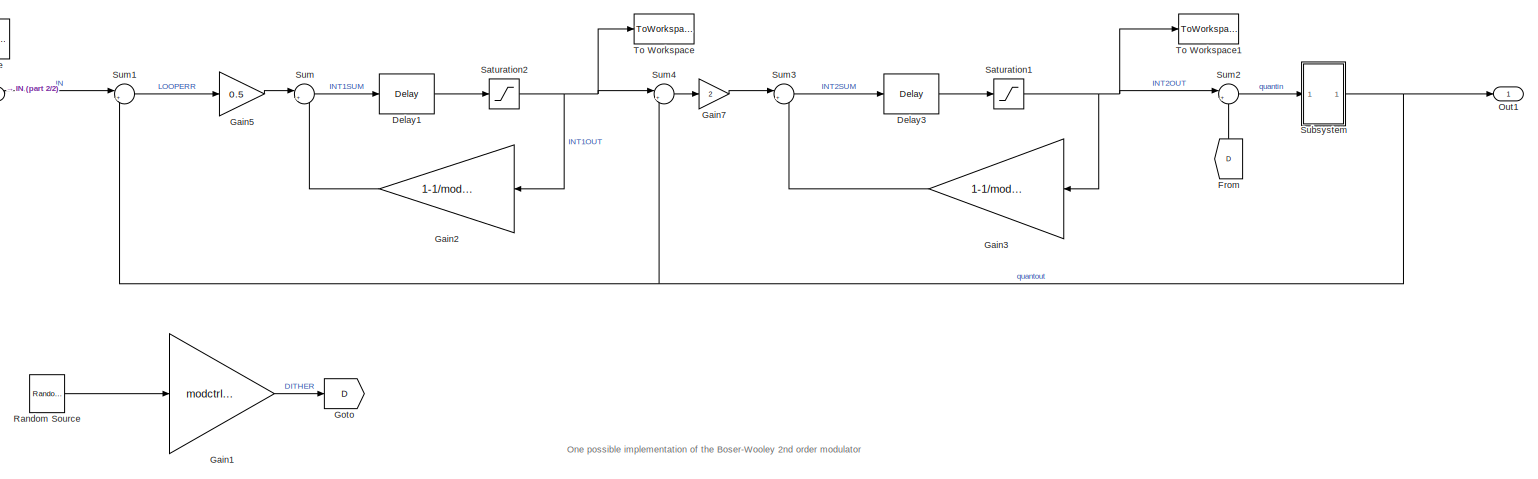
[diagram: root canvas - part 1/2, most of the canvas]
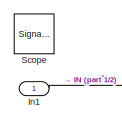
[diagram: root canvas - part 2/2, top left region]
MODEL slx_83c6b1cc9601
KIND model
BLOCK [Reference] Delay1  REF=dspsigops/Delay
  InputProcessing = Inherited (this choice will be removed - see release notes)
  Ports = [1, 1]
  SourceBlock = dspsigops/Delay
  SourceType = Delay
  UserDataPersistent = on
  delay = 1
  dif_ic_for_ch = off
  dif_ic_for_dly = off
  dly_unit = Samples
  ic = 0.05
  ic_detail = off
  reset_popup = None
BLOCK [Reference] Delay3  REF=dspsigops/Delay
  InputProcessing = Inherited (this choice will be removed - see release notes)
  Ports = [1, 1]
  SourceBlock = dspsigops/Delay
  SourceType = Delay
  UserDataPersistent = on
  delay = 1
  dif_ic_for_ch = off
  dif_ic_for_dly = off
  dly_unit = Samples
  ic = 0.05
  ic_detail = off
  reset_popup = None
BLOCK [From] From
  GotoTag = D
BLOCK [Gain] Gain1
  AttributesFormatString = Dither level adjust
  Gain = modctrl.dgain1
  OutDataTypeStr = Inherit: Inherit via internal rule
  ParamDataTypeStr = Inherit: Inherit via internal rule
  SaturateOnIntegerOverflow = off
BLOCK [Gain] Gain2
  AttributesFormatString = Integrator leakage
  Gain = 1-1/modctrl.igain1
  OutDataTypeStr = Inherit: Inherit via internal rule
  ParamDataTypeStr = Inherit: Inherit via internal rule
  SaturateOnIntegerOverflow = off
BLOCK [Gain] Gain3
  AttributesFormatString = Integrator leakage
  Gain = 1-1/modctrl.igain2
  OutDataTypeStr = Inherit: Inherit via internal rule
  ParamDataTypeStr = Inherit: Inherit via internal rule
  SaturateOnIntegerOverflow = off
BLOCK [Gain] Gain5
  Gain = 0.5
  OutDataTypeStr = Inherit: Inherit via internal rule
  ParamDataTypeStr = Inherit: Inherit via internal rule
  SaturateOnIntegerOverflow = off
BLOCK [Gain] Gain7
  Gain = 2
  OutDataTypeStr = Inherit: Inherit via internal rule
  ParamDataTypeStr = Inherit: Inherit via internal rule
  SaturateOnIntegerOverflow = off
BLOCK [Goto] Goto
  GotoTag = D
BLOCK [Inport] In1
  IconDisplay = Port number
BLOCK [Outport] Out1
  IconDisplay = Port number
BLOCK [Reference] Random Source  REF=dspsrcs4/Random
Source
  AttributesFormatString = Dither source
  CltLength = 12
  DataType = Double
  IsInherit = off
  MaxVal = 1
  MeanVal = 0
  MinVal = -1
  NormMethod = Ziggurat
  OutComplex = Real
  Ports = [0, 1]
  RepMode = Not repeatable
  SampFrame = 1
  SampMode = Discrete
  SampTime = 1/Fs
  SourceBlock = dspsrcs4/Random\nSource
  SourceType = Random Source
  SrcType = Uniform
  UserDataPersistent = on
  VarVal = 1
  rawSeed = 1
BLOCK [Saturate] Saturation1
  InputPortMap = u0
  LowerLimit = -(modctrl.isat2)
  Ports = [1, 1]
  UpperLimit = modctrl.isat2
BLOCK [Saturate] Saturation2
  InputPortMap = u0
  LowerLimit = -(modctrl.isat1)
  Ports = [1, 1]
  UpperLimit = modctrl.isat1
BLOCK [SignalViewerScope] Scope
  IOType = viewer
  MaxDataPoints = 7500
  NumInputPorts = 3
  Ports = []
  RefreshTime = 0.035000
  ShowDataMarkers = off
  ShowLegends = off
  YMax = 0.7~2.2~1.2
  YMin = -0.7~-2.2~-1.2
  ZoomMode = yonly
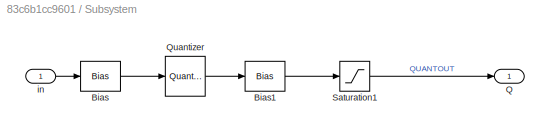
BLOCK [SubSystem] Subsystem
  AttributesFormatString = 2-bit quantiser
  FunctionWithSeparateData = off
  MaskHideContents = off
  MinAlgLoopOccurrences = off
  Opaque = off
  Ports = [1, 1]
  PropExecContextOutsideSubsystem = off
  RTWSystemCode = Auto
  RequestExecContextInheritance = off
BLOCK [Bias] Subsystem/Bias
  AttributesFormatString = Need offset to give\nMID-RISE quantiser
  Bias = 1/3
  SaturateOnIntegerOverflow = off
BLOCK [Bias] Subsystem/Bias1
  Bias = -1/3
  SaturateOnIntegerOverflow = off
BLOCK [Outport] Subsystem/Q
  IconDisplay = Port number
BLOCK [Quantizer] Subsystem/Quantizer
  LinearizeAsGain = off
  QuantizationInterval = 2/3
BLOCK [Saturate] Subsystem/Saturation1
  AttributesFormatString = Limit quantiser\noutput to +/-1
  InputPortMap = u0
  LowerLimit = -1
  Ports = [1, 1]
  UpperLimit = 1
BLOCK [Inport] Subsystem/in
  IconDisplay = Port number
BLOCK [Sum] Sum
  AttributesFormatString = Integrator summer
  IconShape = round
  InputSameDT = off
  Inputs = |++
  OutDataTypeStr = Inherit: Inherit via internal rule
  Ports = [2, 1]
  SaturateOnIntegerOverflow = off
BLOCK [Sum] Sum1
  AttributesFormatString = Modulator input\nloop servo error (input - fbk)
  IconShape = round
  InputSameDT = off
  Inputs = |+-
  OutDataTypeStr = Inherit: Inherit via internal rule
  Ports = [2, 1]
  SaturateOnIntegerOverflow = off
BLOCK [Sum] Sum2
  IconShape = round
  InputSameDT = off
  Inputs = |++
  OutDataTypeStr = Inherit: Inherit via internal rule
  Ports = [2, 1]
  SaturateOnIntegerOverflow = off
BLOCK [Sum] Sum3
  AttributesFormatString = Integrator summer
  IconShape = round
  InputSameDT = off
  Inputs = |++
  OutDataTypeStr = Inherit: Inherit via internal rule
  Ports = [2, 1]
  SaturateOnIntegerOverflow = off
BLOCK [Sum] Sum4
  IconShape = round
  InputSameDT = off
  Inputs = |+-
  OutDataTypeStr = Inherit: Inherit via internal rule
  Ports = [2, 1]
  SaturateOnIntegerOverflow = off
BLOCK [ToWorkspace] To Workspace
  MaxDataPoints = inf
  Ports = [1]
  SampleTime = -1
  VariableName = INT1OUT
BLOCK [ToWorkspace] To Workspace1
  MaxDataPoints = inf
  Ports = [1]
  SampleTime = -1
  VariableName = INT2OUT
ANNOTATION (root): One possible implementation of the Boser-Wooley 2nd order modulator
LINE Delay1:1 -> Saturation2:1
LINE Delay3:1 -> Saturation1:1
LINE From:1 -> Sum2:2
LINE Gain1:1 -> Goto:1
LINE Gain2:1 -> Sum:2
LINE Gain3:1 -> Sum3:2
LINE Gain5:1 -> Sum:1
LINE Gain7:1 -> Sum3:1
LINE In1:1 -> Sum1:1
LINE Random Source:1 -> Gain1:1
NET Saturation1:1 -> Gain3:1, Sum2:1, To Workspace1:1
NET Saturation2:1 -> Gain2:1, Sum4:1, To Workspace:1
LINE Subsystem/Bias1:1 -> Subsystem/Saturation1:1
LINE Subsystem/Bias:1 -> Subsystem/Quantizer:1
LINE Subsystem/Quantizer:1 -> Subsystem/Bias1:1
LINE Subsystem/Saturation1:1 -> Subsystem/Q:1
LINE Subsystem/in:1 -> Subsystem/Bias:1
NET Subsystem:1 -> Out1:1, Sum1:2, Sum4:2
LINE Sum1:1 -> Gain5:1
LINE Sum2:1 -> Subsystem:1
LINE Sum3:1 -> Delay3:1
LINE Sum4:1 -> Gain7:1
LINE Sum:1 -> Delay1:1
note: NET lines group one-source signal fan-out (src -> all destinations, sorted); 1:1 wires keep LINE
